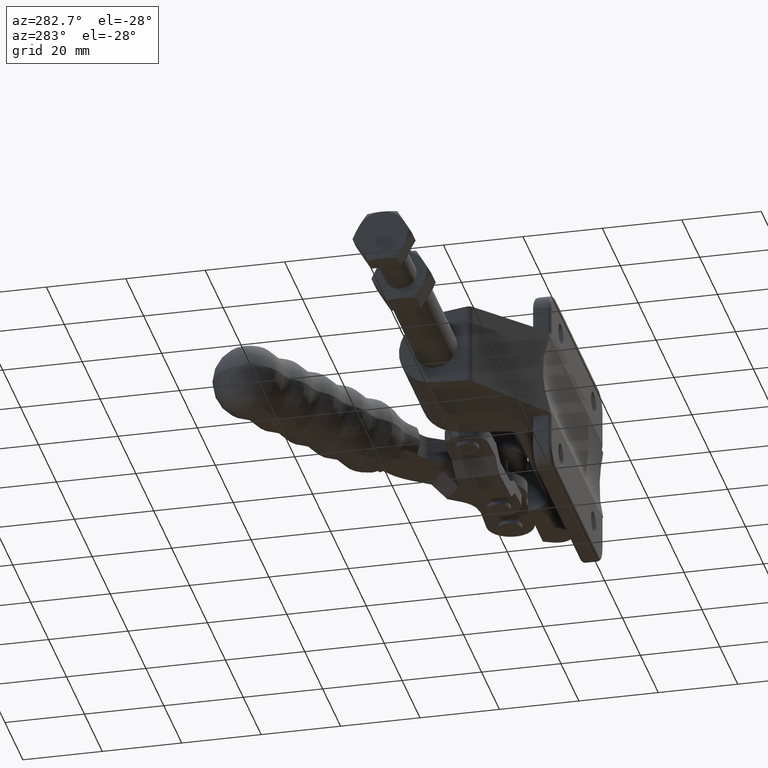
[diagram: clean part render]
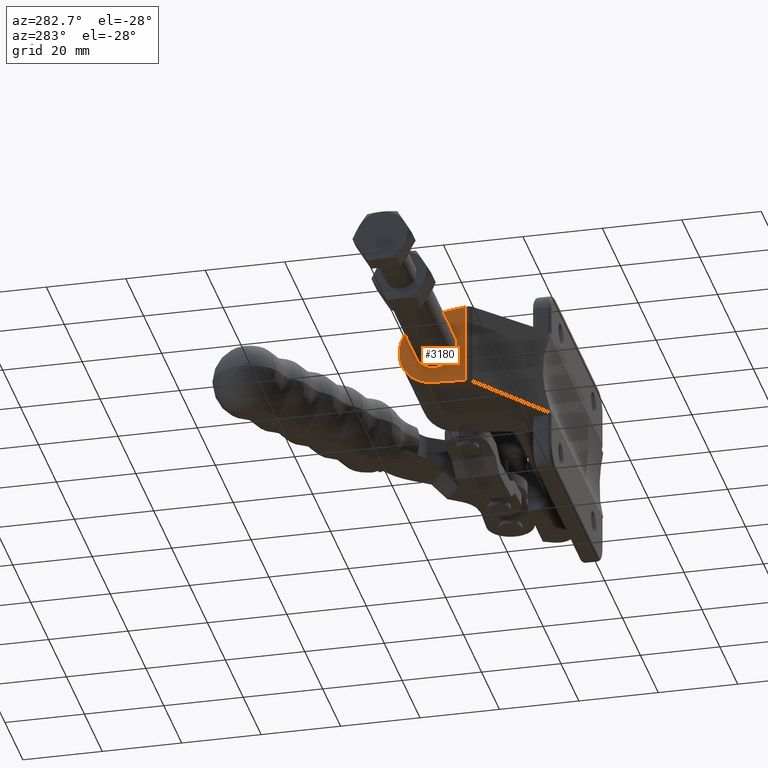
[diagram: same view with one face highlighted and labeled with its STEP entity id]
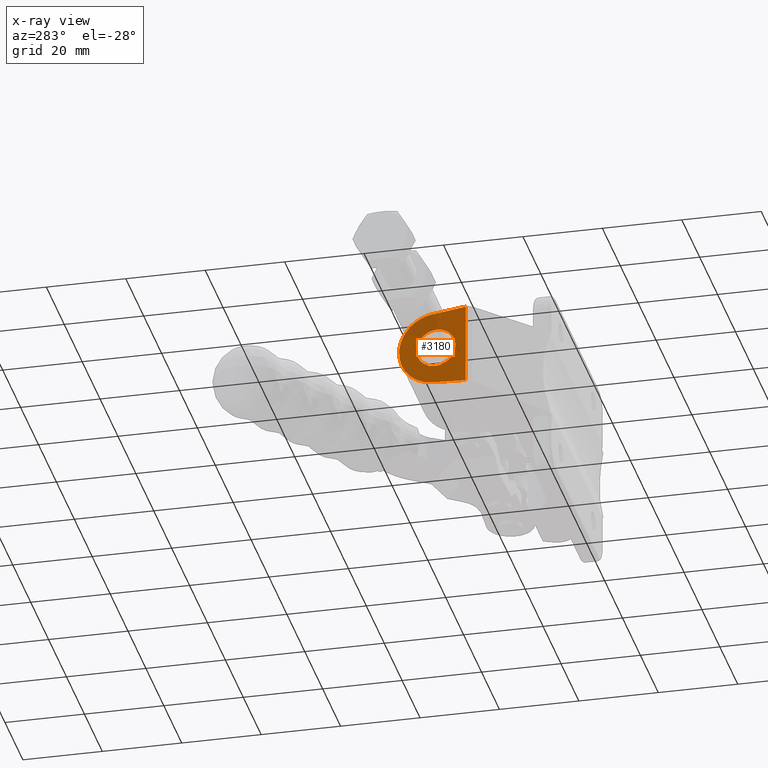
[diagram: x-ray of the same camera — body ghosted, the highlighted face saturated]
A machine part, auxiliary view. The second image highlights one B-rep face of the part: STEP entity #3180.
The next image is the same camera in x-ray: the body ghosted, the highlighted face saturated — about 16% of this face is hidden behind the body in this view.
In plain terms, the highlighted planar face has unit normal (-0.9962, 0.0872, 0).
Its self-contained STEP definition (entity closure, byte-faithful):
#90 = EDGE_CURVE ( 'NONE', #2044, #8222, #8950, .T. ) ;
#179 = CARTESIAN_POINT ( 'NONE',  ( 0.7448413311130491800, 25.42797955610389200, 9.463849631871163100 ) ) ;
#239 = EDGE_CURVE ( 'NONE', #5808, #1028, #9272, .T. ) ;
#273 = ORIENTED_EDGE ( 'NONE', *, *, #4299, .F. ) ;
#823 = VECTOR ( 'NONE', #4632, 1000.000000000000100 ) ;
#1028 = VERTEX_POINT ( 'NONE', #1993 ) ;
#1107 = LINE ( 'NONE', #11095, #823 ) ;
#1512 = CARTESIAN_POINT ( 'NONE',  ( 0.6724025063225558300, 24.59999999999998700, 5.000000000000011500 ) ) ;
#1925 = CARTESIAN_POINT ( 'NONE',  ( 0.6724025063225558300, 24.59999999999998700, -4.999999999999990200 ) ) ;
#1991 = CARTESIAN_POINT ( 'NONE',  ( -0.2024841289388650800, 14.59999999999998700, 5.000000000000010700 ) ) ;
#1993 = CARTESIAN_POINT ( 'NONE',  ( 0.6724025063225558300, 24.59999999999998700, 5.000000000000011500 ) ) ;
#2044 = VERTEX_POINT ( 'NONE', #5272 ) ;
#2081 = DIRECTION ( 'NONE',  ( 0.0000000000000000000, 0.0000000000000000000, 1.000000000000000000 ) ) ;
#2595 = VECTOR ( 'NONE', #2081, 1000.000000000000000 ) ;
#2659 = VERTEX_POINT ( 'NONE', #179 ) ;
#2931 = EDGE_LOOP ( 'NONE', ( #7742, #7797, #273, #8794 ) ) ;
#3075 = FACE_OUTER_BOUND ( 'NONE', #2931, .T. ) ;
#3180 = ADVANCED_FACE ( 'NONE', ( #10142, #3075 ), #7682, .T. ) ;
#3218 = CARTESIAN_POINT ( 'NONE',  ( 2.149628483598168500, 41.48477018321596400, -8.059062479387641500 ) ) ;
#3360 = CARTESIAN_POINT ( 'NONE',  ( 0.6724025063225558300, 24.59999999999998700, -4.999999999999990200 ) ) ;
#3626 =( BOUNDED_CURVE ( )  B_SPLINE_CURVE ( 3, ( #1512, #4257, #8907, #3360 ),
 .UNSPECIFIED., .F., .F. ) 
 B_SPLINE_CURVE_WITH_KNOTS ( ( 4, 4 ),
 ( 1.570796326794896600, 4.712388980384689700 ),
 .UNSPECIFIED. ) 
 CURVE ( )  GEOMETRIC_REPRESENTATION_ITEM ( )  RATIONAL_B_SPLINE_CURVE ( ( 1.000000000000000000, 0.3333333333333333700, 0.3333333333333333700, 1.000000000000000000 ) ) 
 REPRESENTATION_ITEM ( '' )  );
#4002 = CARTESIAN_POINT ( 'NONE',  ( 1.343817761672437600, 32.27431148550189000, -61.24999999999999300 ) ) ;
#4142 = CARTESIAN_POINT ( 'NONE',  ( 2.149628483598166700, 41.48477018321595000, 8.059062479387685900 ) ) ;
#4257 = CARTESIAN_POINT ( 'NONE',  ( 1.547289141583976700, 34.59999999999998700, 5.000000000000012400 ) ) ;
#4299 = EDGE_CURVE ( 'NONE', #8222, #2659, #5255, .T. ) ;
#4632 = DIRECTION ( 'NONE',  ( -0.08682659386446152400, -0.9924325091389381000, 0.08682659386436429600 ) ) ;
#4712 = CARTESIAN_POINT ( 'NONE',  ( 1.436570388225227900, 33.33447885821620800, -8.772120574759803400 ) ) ;
#4731 = EDGE_CURVE ( 'NONE', #2044, #7490, #11844, .T. ) ;
#4945 = DIRECTION ( 'NONE',  ( -0.08715574274787379900, -0.9961946980917266700, 0.0000000000000000000 ) ) ;
#5255 =( BOUNDED_CURVE ( )  B_SPLINE_CURVE ( 3, ( #6891, #3218, #4142, #10594 ),
 .UNSPECIFIED., .F., .F. ) 
 B_SPLINE_CURVE_WITH_KNOTS ( ( 4, 4 ),
 ( 1.658062789394732200, 4.625122517784856900 ),
 .UNSPECIFIED. ) 
 CURVE ( )  GEOMETRIC_REPRESENTATION_ITEM ( )  RATIONAL_B_SPLINE_CURVE ( ( 1.000000000000000000, 0.3914371618318502300, 0.3914371618318502300, 1.000000000000000000 ) ) 
 REPRESENTATION_ITEM ( '' )  );
#5272 = CARTESIAN_POINT ( 'NONE',  ( 0.007610603816539103300, 17.00139378392297100, -10.20108035916690200 ) ) ;
#5808 = VERTEX_POINT ( 'NONE', #9912 ) ;
#5979 = EDGE_CURVE ( 'NONE', #2659, #7490, #1107, .T. ) ;
#6038 = CARTESIAN_POINT ( 'NONE',  ( 0.7448413311130497300, 25.42797955610392400, -9.463849631871207500 ) ) ;
#6259 = AXIS2_PLACEMENT_3D ( 'NONE', #4002, #10468, #4945 ) ;
#6319 = EDGE_CURVE ( 'NONE', #1028, #5808, #3626, .T. ) ;
#6455 = CARTESIAN_POINT ( 'NONE',  ( 0.007610603816540729600, 17.00139378392297100, 10.20108035916684700 ) ) ;
#6694 = CARTESIAN_POINT ( 'NONE',  ( 0.007610603816545283300, 17.00139378392297100, -61.24999999999999300 ) ) ;
#6823 = CARTESIAN_POINT ( 'NONE',  ( 0.6724025063225558300, 24.59999999999998700, 5.000000000000011500 ) ) ;
#6891 = CARTESIAN_POINT ( 'NONE',  ( 0.7448413311130497300, 25.42797955610392400, -9.463849631871207500 ) ) ;
#7490 = VERTEX_POINT ( 'NONE', #6455 ) ;
#7682 = PLANE ( 'NONE',  #6259 ) ;
#7742 = ORIENTED_EDGE ( 'NONE', *, *, #4731, .T. ) ;
#7776 = EDGE_LOOP ( 'NONE', ( #8511, #10791 ) ) ;
#7797 = ORIENTED_EDGE ( 'NONE', *, *, #5979, .F. ) ;
#8222 = VERTEX_POINT ( 'NONE', #6038 ) ;
#8353 = DIRECTION ( 'NONE',  ( 0.08682659386446152400, 0.9924325091389381000, 0.08682659386436436500 ) ) ;
#8511 = ORIENTED_EDGE ( 'NONE', *, *, #6319, .F. ) ;
#8794 = ORIENTED_EDGE ( 'NONE', *, *, #90, .F. ) ;
#8907 = CARTESIAN_POINT ( 'NONE',  ( 1.547289141583976900, 34.59999999999998700, -4.999999999999988500 ) ) ;
#8950 = LINE ( 'NONE', #4712, #11418 ) ;
#9272 =( BOUNDED_CURVE ( )  B_SPLINE_CURVE ( 3, ( #1925, #9698, #1991, #6823 ),
 .UNSPECIFIED., .F., .F. ) 
 B_SPLINE_CURVE_WITH_KNOTS ( ( 4, 4 ),
 ( 4.712388980384689700, 7.853981633974482800 ),
 .UNSPECIFIED. ) 
 CURVE ( )  GEOMETRIC_REPRESENTATION_ITEM ( )  RATIONAL_B_SPLINE_CURVE ( ( 1.000000000000000000, 0.3333333333333333700, 0.3333333333333333700, 1.000000000000000000 ) ) 
 REPRESENTATION_ITEM ( '' )  );
#9698 = CARTESIAN_POINT ( 'NONE',  ( -0.2024841289388650000, 14.59999999999998700, -4.999999999999992000 ) ) ;
#9912 = CARTESIAN_POINT ( 'NONE',  ( 0.6724025063225558300, 24.59999999999998700, -4.999999999999990200 ) ) ;
#10142 = FACE_BOUND ( 'NONE', #7776, .T. ) ;
#10468 = DIRECTION ( 'NONE',  ( -0.9961946980917266700, 0.08715574274787379900, 0.0000000000000000000 ) ) ;
#10594 = CARTESIAN_POINT ( 'NONE',  ( 0.7448413311130491800, 25.42797955610389200, 9.463849631871163100 ) ) ;
#10791 = ORIENTED_EDGE ( 'NONE', *, *, #239, .F. ) ;
#11095 = CARTESIAN_POINT ( 'NONE',  ( 1.436570388225227900, 33.33447885821617300, 8.772120574759759000 ) ) ;
#11418 = VECTOR ( 'NONE', #8353, 1000.000000000000100 ) ;
#11844 = LINE ( 'NONE', #6694, #2595 ) ;